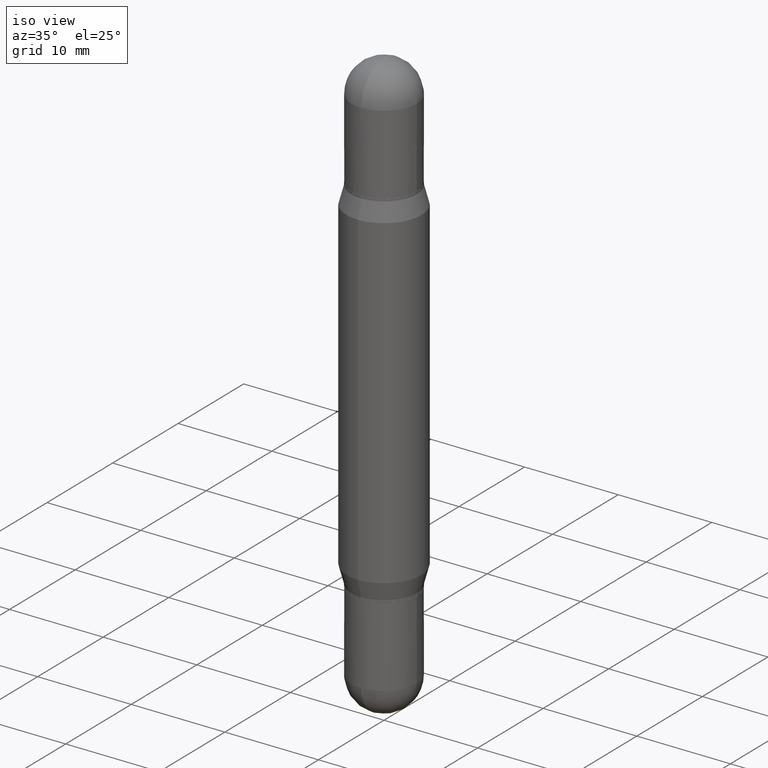
[diagram: clean part render]
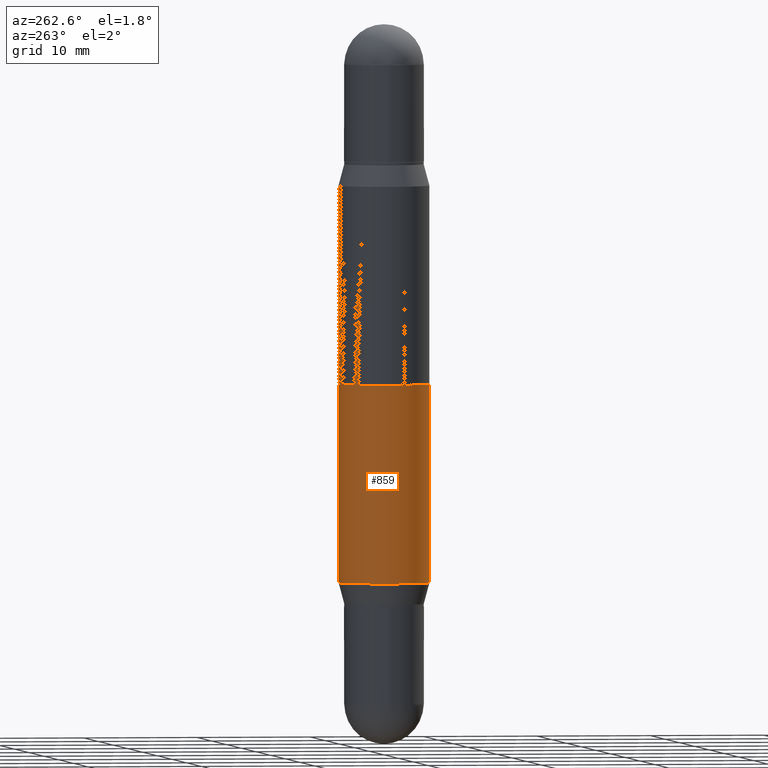
[diagram: tour spotlight — one face highlighted and labeled with its STEP entity id]
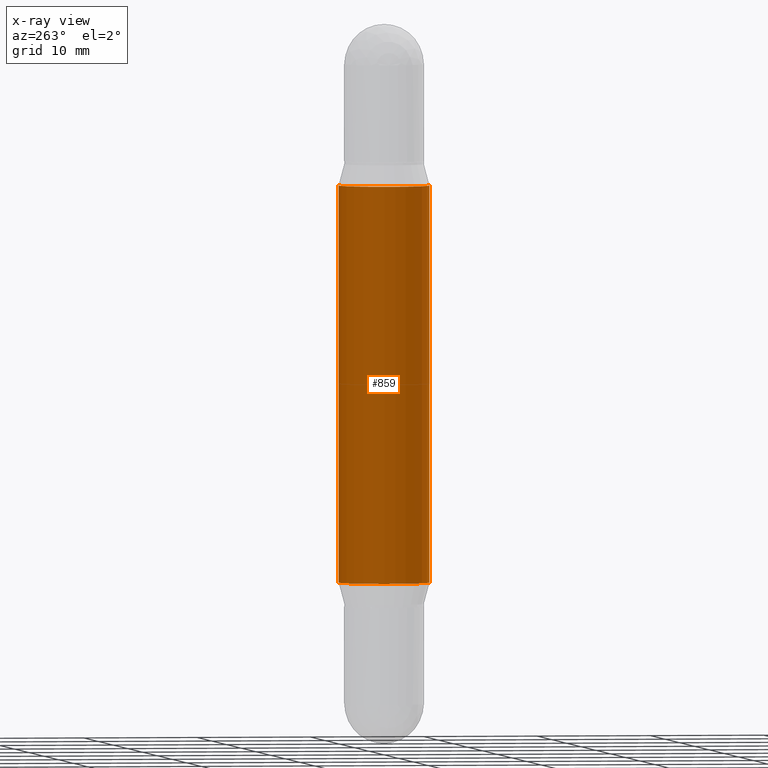
[diagram: x-ray of the same camera — body ghosted, this tour face saturated]
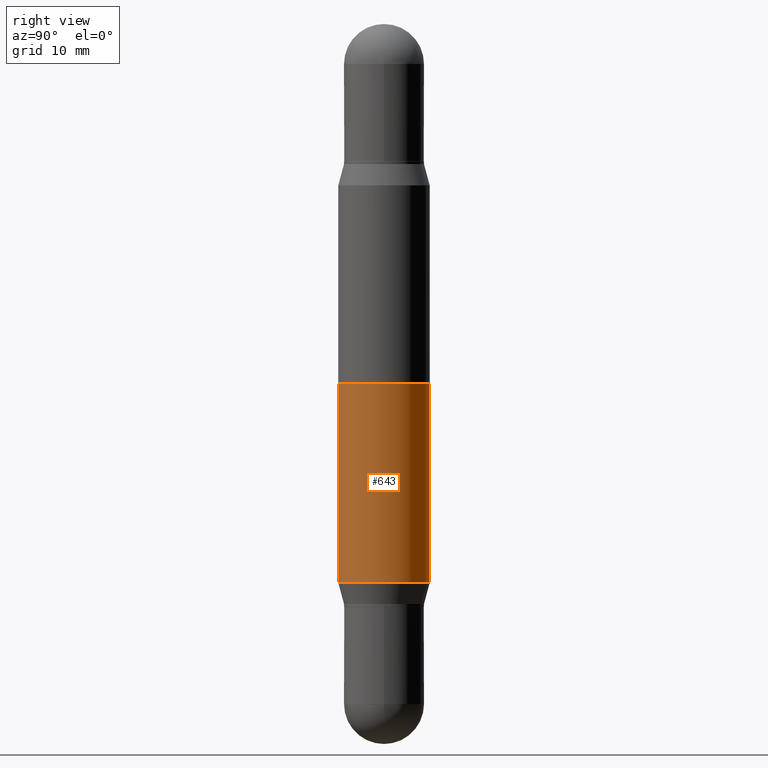
[diagram: tour spotlight — one face highlighted and labeled with its STEP entity id]
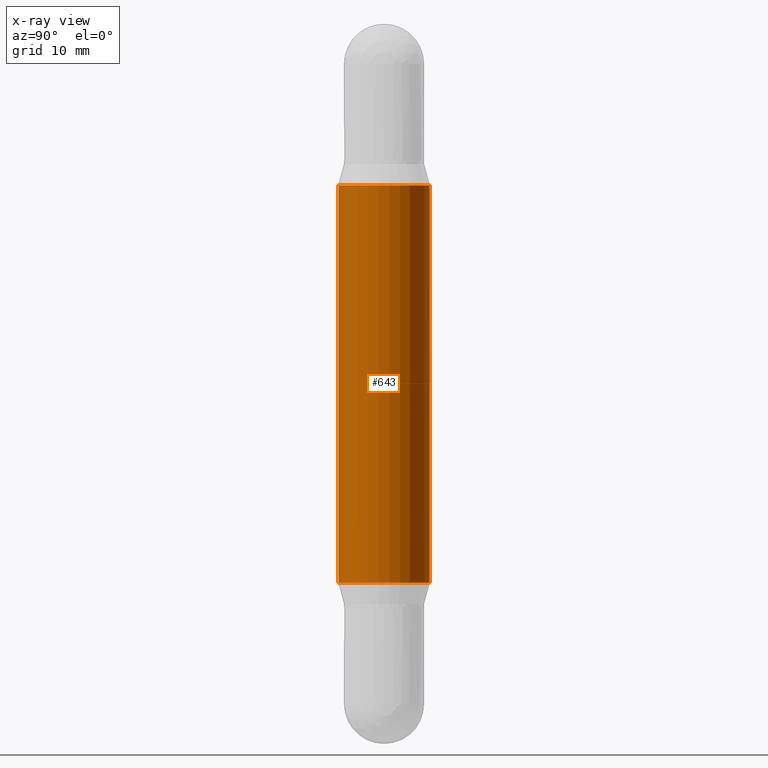
[diagram: x-ray of the same camera — body ghosted, this tour face saturated]
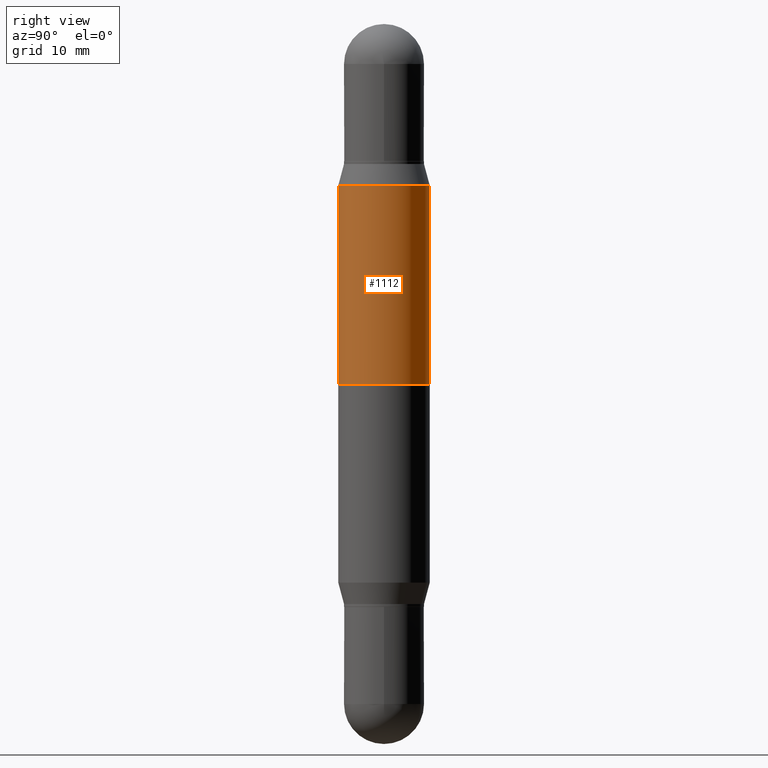
[diagram: tour spotlight — one face highlighted and labeled with its STEP entity id]
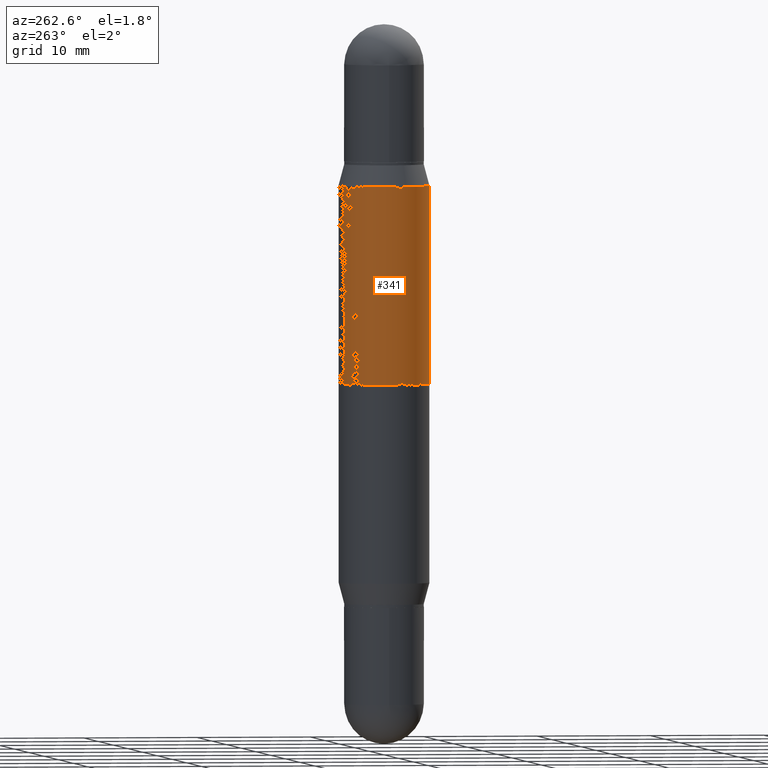
[diagram: tour spotlight — one face highlighted and labeled with its STEP entity id]
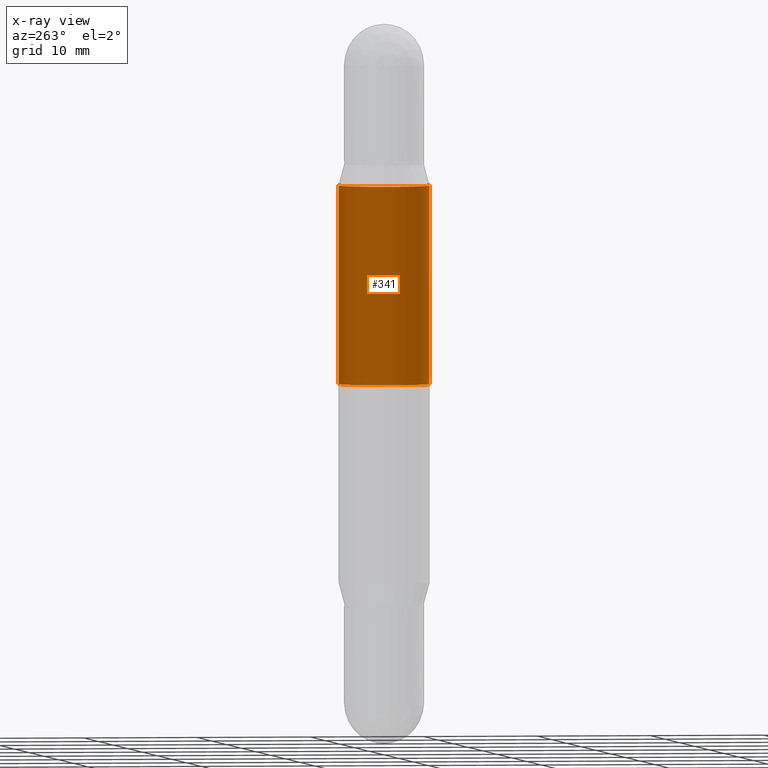
[diagram: x-ray of the same camera — body ghosted, this tour face saturated]
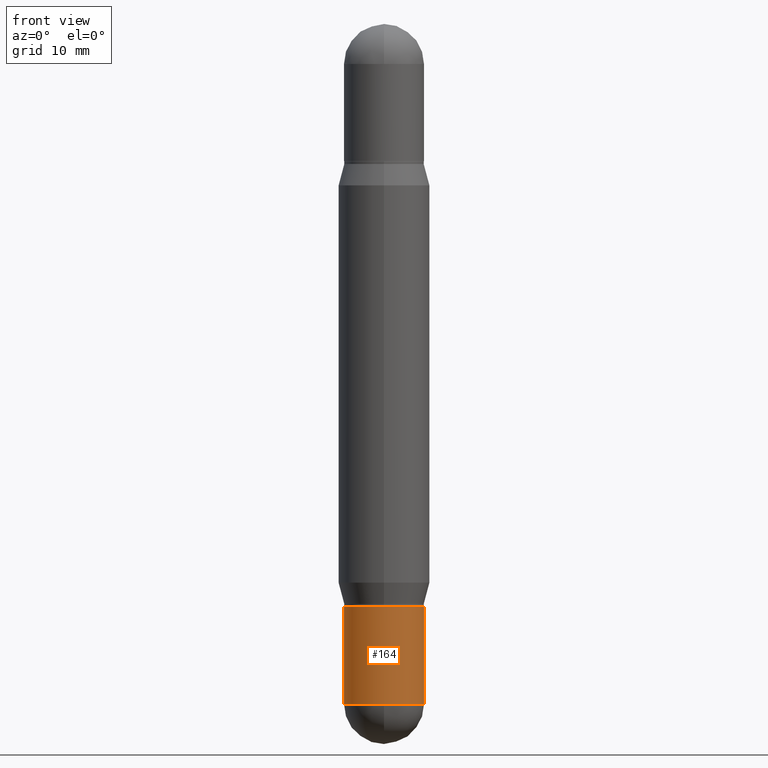
[diagram: tour spotlight — one face highlighted and labeled with its STEP entity id]
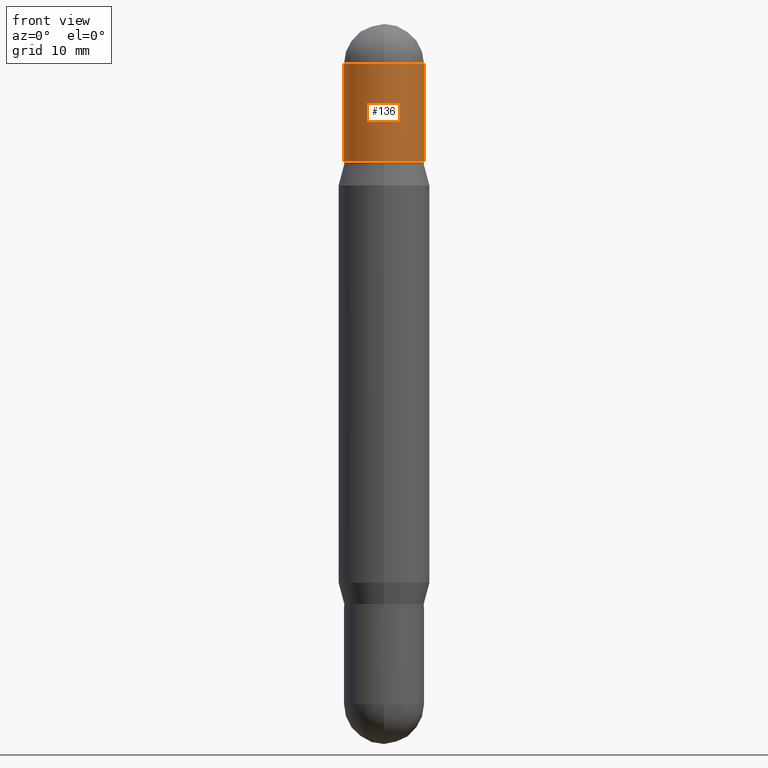
[diagram: tour spotlight — one face highlighted and labeled with its STEP entity id]
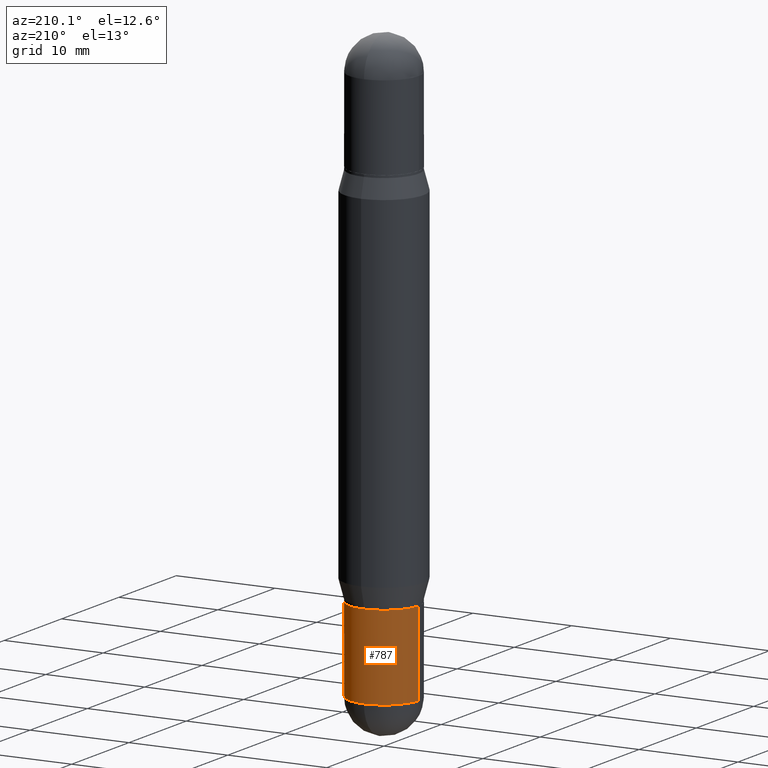
[diagram: tour spotlight — one face highlighted and labeled with its STEP entity id]
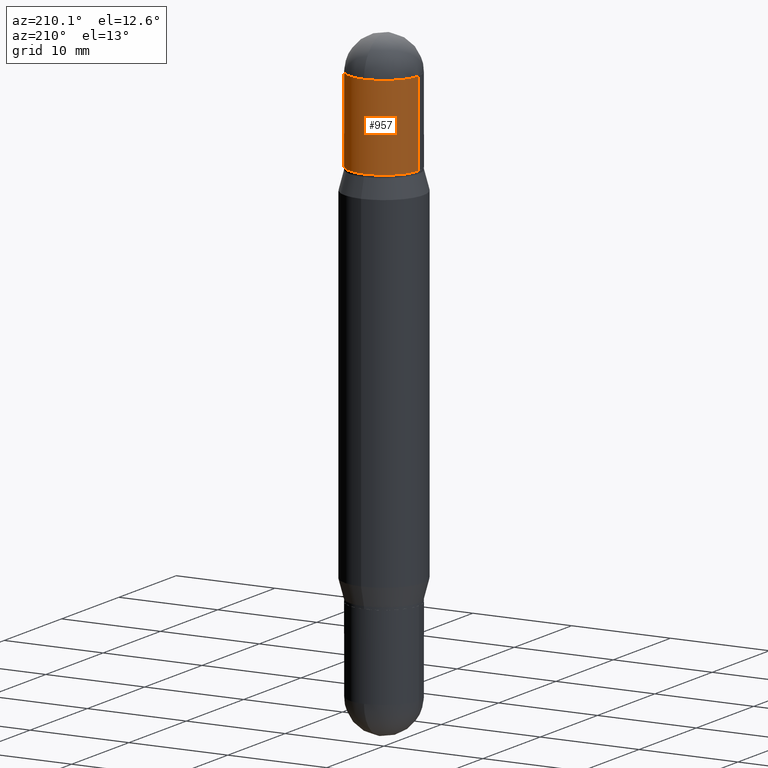
[diagram: tour spotlight — one face highlighted and labeled with its STEP entity id]
A machine part: a face-by-face anatomy tour. The part has 41 B-rep faces; the first image is the clean iso view, then the 8 largest visible faces are spotlighted one at a time (largest first), each with its STEP entity span.

Face 1 — auxiliary view, entity #859. An x-ray twin of the same camera follows (body ghosted, this face saturated) — the face is partly hidden behind the body. In plain terms, the highlighted cylindrical surface (partial cylindrical patch) has radius 4.0005 mm, axis along (-0, -0, -1).
Definition (entity closure, byte-faithful):
#32 = CARTESIAN_POINT ( 'NONE',  ( 0.000000000000000000, -8.645204463588881794E-15, -2.480300000000000171 ) ) ;
#44 = LINE ( 'NONE', #389, #132 ) ;
#65 = CARTESIAN_POINT ( 'NONE',  ( -1.099816621735539754E-15, -0.1575000000000067180, -1.924378599090893038 ) ) ;
#132 = VECTOR ( 'NONE', #574, 39.37007874015748143 ) ;
#133 = CARTESIAN_POINT ( 'NONE',  ( 4.708763311328271682E-29, -6.714985969186524876E-15, -1.924378599090893704 ) ) ;
#227 = CIRCLE ( 'NONE', #567, 0.1575000000000000011 ) ;
#231 = FACE_OUTER_BOUND ( 'NONE', #512, .T. ) ;
#260 = AXIS2_PLACEMENT_3D ( 'NONE', #133, #1082, #558 ) ;
#278 = VERTEX_POINT ( 'NONE', #578 ) ;
#316 = VERTEX_POINT ( 'NONE', #903 ) ;
#319 = ORIENTED_EDGE ( 'NONE', *, *, #411, .T. ) ;
#355 = VERTEX_POINT ( 'NONE', #65 ) ;
#375 = DIRECTION ( 'NONE',  ( -6.982962677686264344E-15, -1.000000000000000000, 3.469013325287953293E-15 ) ) ;
#377 = EDGE_CURVE ( 'NONE', #316, #355, #747, .T. ) ;
#382 = EDGE_CURVE ( 'NONE', #386, #355, #1070, .T. ) ;
#386 = VERTEX_POINT ( 'NONE', #750 ) ;
#389 = CARTESIAN_POINT ( 'NONE',  ( 1.080528434649016174E-15, 0.1574999999999913414, -2.480300000000001059 ) ) ;
#407 = ORIENTED_EDGE ( 'NONE', *, *, #382, .F. ) ;
#411 = EDGE_CURVE ( 'NONE', #278, #316, #44, .T. ) ;
#474 = ORIENTED_EDGE ( 'NONE', *, *, #645, .F. ) ;
#512 = EDGE_LOOP ( 'NONE', ( #474, #319, #791, #407 ) ) ;
#533 = CARTESIAN_POINT ( 'NONE',  ( 4.708763311328271682E-29, -1.945162851841235390E-15, -0.5559214009091065778 ) ) ;
#558 = DIRECTION ( 'NONE',  ( -6.982962677686264344E-15, -1.000000000000000000, 3.469013325287953293E-15 ) ) ;
#567 = AXIS2_PLACEMENT_3D ( 'NONE', #533, #954, #794 ) ;
#573 = DIRECTION ( 'NONE',  ( -2.446900684487327434E-29, -3.481664998204017086E-15, -1.000000000000000000 ) ) ;
#574 = DIRECTION ( 'NONE',  ( -2.446900684487327434E-29, -3.481664998204017480E-15, -1.000000000000000000 ) ) ;
#578 = CARTESIAN_POINT ( 'NONE',  ( 1.080528434649063111E-15, 0.1574999999999980582, -0.5559214009091071329 ) ) ;
#645 = EDGE_CURVE ( 'NONE', #278, #386, #227, .T. ) ;
#747 = CIRCLE ( 'NONE', #260, 0.1575000000000000011 ) ;
#750 = CARTESIAN_POINT ( 'NONE',  ( -1.099816621735539754E-15, -0.1575000000000019440, -0.5559214009091061337 ) ) ;
#791 = ORIENTED_EDGE ( 'NONE', *, *, #377, .T. ) ;
#794 = DIRECTION ( 'NONE',  ( -6.982962677686264344E-15, -1.000000000000000000, 3.469013325287953293E-15 ) ) ;
#809 = CYLINDRICAL_SURFACE ( 'NONE', #962, 0.1575000000000000011 ) ;
#824 = DIRECTION ( 'NONE',  ( -2.446900684487327434E-29, -3.481664998204017480E-15, -1.000000000000000000 ) ) ;
#854 = VECTOR ( 'NONE', #824, 39.37007874015748143 ) ;
#859 = ADVANCED_FACE ( 'NONE', ( #231 ), #809, .T. ) ;
#903 = CARTESIAN_POINT ( 'NONE',  ( 1.080528434649046348E-15, 0.1574999999999932565, -1.924378599090894149 ) ) ;
#954 = DIRECTION ( 'NONE',  ( 2.446900684487327434E-29, 3.481664998204017086E-15, 1.000000000000000000 ) ) ;
#962 = AXIS2_PLACEMENT_3D ( 'NONE', #32, #573, #375 ) ;
#1002 = CARTESIAN_POINT ( 'NONE',  ( -1.099816621735586691E-15, -0.1575000000000086331, -2.480299999999999727 ) ) ;
#1070 = LINE ( 'NONE', #1002, #854 ) ;
#1082 = DIRECTION ( 'NONE',  ( -2.446900684487327434E-29, 3.489430807616956751E-15, 1.000000000000000000 ) ) ;

Face 2 — right view, entity #643. An x-ray twin of the same camera follows (body ghosted, this face saturated) — the face is partly hidden behind the body. In plain terms, the highlighted cylindrical surface (partial cylindrical patch) has radius 4.0005 mm, axis along (-0, -0, -1).
Definition (entity closure, byte-faithful):
#33 = DIRECTION ( 'NONE',  ( -6.982962677686264344E-15, -1.000000000000000000, 3.469013325287953293E-15 ) ) ;
#44 = LINE ( 'NONE', #389, #132 ) ;
#65 = CARTESIAN_POINT ( 'NONE',  ( -1.099816621735539754E-15, -0.1575000000000067180, -1.924378599090893038 ) ) ;
#124 = EDGE_CURVE ( 'NONE', #386, #278, #885, .T. ) ;
#131 = CIRCLE ( 'NONE', #496, 0.1575000000000000011 ) ;
#132 = VECTOR ( 'NONE', #574, 39.37007874015748143 ) ;
#145 = EDGE_CURVE ( 'NONE', #355, #316, #131, .T. ) ;
#165 = DIRECTION ( 'NONE',  ( -6.982962677686264344E-15, -1.000000000000000000, 3.469013325287953293E-15 ) ) ;
#263 = CARTESIAN_POINT ( 'NONE',  ( 4.708763311328271682E-29, -1.945162851841235390E-15, -0.5559214009091065778 ) ) ;
#278 = VERTEX_POINT ( 'NONE', #578 ) ;
#316 = VERTEX_POINT ( 'NONE', #903 ) ;
#355 = VERTEX_POINT ( 'NONE', #65 ) ;
#382 = EDGE_CURVE ( 'NONE', #386, #355, #1070, .T. ) ;
#386 = VERTEX_POINT ( 'NONE', #750 ) ;
#389 = CARTESIAN_POINT ( 'NONE',  ( 1.080528434649016174E-15, 0.1574999999999913414, -2.480300000000001059 ) ) ;
#411 = EDGE_CURVE ( 'NONE', #278, #316, #44, .T. ) ;
#445 = DIRECTION ( 'NONE',  ( -2.446900684487327434E-29, -3.481664998204017086E-15, -1.000000000000000000 ) ) ;
#481 = ORIENTED_EDGE ( 'NONE', *, *, #382, .T. ) ;
#496 = AXIS2_PLACEMENT_3D ( 'NONE', #614, #978, #33 ) ;
#508 = EDGE_LOOP ( 'NONE', ( #1113, #932, #481, #973 ) ) ;
#526 = FACE_OUTER_BOUND ( 'NONE', #508, .T. ) ;
#574 = DIRECTION ( 'NONE',  ( -2.446900684487327434E-29, -3.481664998204017480E-15, -1.000000000000000000 ) ) ;
#578 = CARTESIAN_POINT ( 'NONE',  ( 1.080528434649063111E-15, 0.1574999999999980582, -0.5559214009091071329 ) ) ;
#590 = DIRECTION ( 'NONE',  ( 2.446900684487327434E-29, 3.481664998204017086E-15, 1.000000000000000000 ) ) ;
#602 = AXIS2_PLACEMENT_3D ( 'NONE', #612, #445, #1039 ) ;
#612 = CARTESIAN_POINT ( 'NONE',  ( 0.000000000000000000, -8.645204463588881794E-15, -2.480300000000000171 ) ) ;
#614 = CARTESIAN_POINT ( 'NONE',  ( 4.708763311328271682E-29, -6.714985969186524876E-15, -1.924378599090893704 ) ) ;
#643 = ADVANCED_FACE ( 'NONE', ( #526 ), #706, .T. ) ;
#694 = AXIS2_PLACEMENT_3D ( 'NONE', #263, #590, #165 ) ;
#706 = CYLINDRICAL_SURFACE ( 'NONE', #602, 0.1575000000000000011 ) ;
#750 = CARTESIAN_POINT ( 'NONE',  ( -1.099816621735539754E-15, -0.1575000000000019440, -0.5559214009091061337 ) ) ;
#824 = DIRECTION ( 'NONE',  ( -2.446900684487327434E-29, -3.481664998204017480E-15, -1.000000000000000000 ) ) ;
#854 = VECTOR ( 'NONE', #824, 39.37007874015748143 ) ;
#885 = CIRCLE ( 'NONE', #694, 0.1575000000000000011 ) ;
#903 = CARTESIAN_POINT ( 'NONE',  ( 1.080528434649046348E-15, 0.1574999999999932565, -1.924378599090894149 ) ) ;
#932 = ORIENTED_EDGE ( 'NONE', *, *, #124, .F. ) ;
#973 = ORIENTED_EDGE ( 'NONE', *, *, #145, .T. ) ;
#978 = DIRECTION ( 'NONE',  ( -2.446900684487327434E-29, 3.489430807616956751E-15, 1.000000000000000000 ) ) ;
#1002 = CARTESIAN_POINT ( 'NONE',  ( -1.099816621735586691E-15, -0.1575000000000086331, -2.480299999999999727 ) ) ;
#1039 = DIRECTION ( 'NONE',  ( -6.982962677686264344E-15, -1.000000000000000000, 3.469013325287953293E-15 ) ) ;
#1070 = LINE ( 'NONE', #1002, #854 ) ;
#1113 = ORIENTED_EDGE ( 'NONE', *, *, #411, .F. ) ;

Face 3 — right view, entity #1112. In plain terms, the highlighted cylindrical surface (partial cylindrical patch) has radius 4.0005 mm, axis along (-0, -0, -1).
Definition (entity closure, byte-faithful):
#28 = CARTESIAN_POINT ( 'NONE',  ( 3.034523883866959709E-29, -4.327417616066169233E-15, -1.240150000000000086 ) ) ;
#62 = AXIS2_PLACEMENT_3D ( 'NONE', #971, #1056, #881 ) ;
#79 = VECTOR ( 'NONE', #534, 39.37007874015748143 ) ;
#92 = EDGE_CURVE ( 'NONE', #579, #813, #325, .T. ) ;
#103 = CARTESIAN_POINT ( 'NONE',  ( 0.000000000000000000, -8.645204463588881794E-15, -2.480300000000000171 ) ) ;
#127 = EDGE_CURVE ( 'NONE', #704, #813, #1019, .T. ) ;
#175 = CIRCLE ( 'NONE', #62, 0.1575000000000000011 ) ;
#202 = EDGE_CURVE ( 'NONE', #554, #704, #1063, .T. ) ;
#208 = AXIS2_PLACEMENT_3D ( 'NONE', #28, #715, #279 ) ;
#223 = CARTESIAN_POINT ( 'NONE',  ( -1.099816621735556123E-15, -0.1575000000000043310, -1.240149999999999642 ) ) ;
#249 = ORIENTED_EDGE ( 'NONE', *, *, #92, .T. ) ;
#259 = VECTOR ( 'NONE', #417, 39.37007874015748143 ) ;
#275 = CYLINDRICAL_SURFACE ( 'NONE', #385, 0.1575000000000000011 ) ;
#279 = DIRECTION ( 'NONE',  ( 0.000000000000000000, 1.000000000000000000, -3.469013325287953293E-15 ) ) ;
#284 = EDGE_LOOP ( 'NONE', ( #650, #545, #249, #500 ) ) ;
#325 = LINE ( 'NONE', #943, #259 ) ;
#346 = DIRECTION ( 'NONE',  ( -2.446900684487327434E-29, -3.481664998204017086E-15, -1.000000000000000000 ) ) ;
#363 = FACE_OUTER_BOUND ( 'NONE', #284, .T. ) ;
#385 = AXIS2_PLACEMENT_3D ( 'NONE', #103, #346, #532 ) ;
#417 = DIRECTION ( 'NONE',  ( -2.446900684487327434E-29, -3.481664998204017480E-15, -1.000000000000000000 ) ) ;
#500 = ORIENTED_EDGE ( 'NONE', *, *, #127, .F. ) ;
#532 = DIRECTION ( 'NONE',  ( -6.982962677686264344E-15, -1.000000000000000000, 3.469013325287953293E-15 ) ) ;
#534 = DIRECTION ( 'NONE',  ( -2.446900684487327434E-29, -3.481664998204017480E-15, -1.000000000000000000 ) ) ;
#545 = ORIENTED_EDGE ( 'NONE', *, *, #665, .F. ) ;
#554 = VERTEX_POINT ( 'NONE', #1028 ) ;
#579 = VERTEX_POINT ( 'NONE', #689 ) ;
#650 = ORIENTED_EDGE ( 'NONE', *, *, #202, .F. ) ;
#665 = EDGE_CURVE ( 'NONE', #579, #554, #175, .T. ) ;
#689 = CARTESIAN_POINT ( 'NONE',  ( -1.099816621735539754E-15, -0.1575000000000019440, -0.5559214009091061337 ) ) ;
#704 = VERTEX_POINT ( 'NONE', #977 ) ;
#715 = DIRECTION ( 'NONE',  ( -0.000000000000000000, -3.485547902910486918E-15, -1.000000000000000000 ) ) ;
#812 = CARTESIAN_POINT ( 'NONE',  ( 1.080528434649016174E-15, 0.1574999999999913414, -2.480300000000001059 ) ) ;
#813 = VERTEX_POINT ( 'NONE', #223 ) ;
#881 = DIRECTION ( 'NONE',  ( -6.982962677686264344E-15, -1.000000000000000000, 3.469013325287953293E-15 ) ) ;
#943 = CARTESIAN_POINT ( 'NONE',  ( -1.099816621735586691E-15, -0.1575000000000086331, -2.480299999999999727 ) ) ;
#971 = CARTESIAN_POINT ( 'NONE',  ( 4.708763311328271682E-29, -1.945162851841235390E-15, -0.5559214009091065778 ) ) ;
#977 = CARTESIAN_POINT ( 'NONE',  ( 1.080528434649054828E-15, 0.1574999999999956435, -1.240150000000000752 ) ) ;
#1019 = CIRCLE ( 'NONE', #208, 0.1575000000000000011 ) ;
#1028 = CARTESIAN_POINT ( 'NONE',  ( 1.080528434649063111E-15, 0.1574999999999980582, -0.5559214009091071329 ) ) ;
#1056 = DIRECTION ( 'NONE',  ( 2.446900684487327434E-29, 3.481664998204017086E-15, 1.000000000000000000 ) ) ;
#1063 = LINE ( 'NONE', #812, #79 ) ;
#1112 = ADVANCED_FACE ( 'NONE', ( #363 ), #275, .T. ) ;

Face 4 — auxiliary view, entity #341. An x-ray twin of the same camera follows (body ghosted, this face saturated) — the face is partly hidden behind the body. In plain terms, the highlighted cylindrical surface (partial cylindrical patch) has radius 4.0005 mm, axis along (-0, -0, -1).
Definition (entity closure, byte-faithful):
#14 = CARTESIAN_POINT ( 'NONE',  ( 3.034523883866959709E-29, -4.327417616066169233E-15, -1.240150000000000086 ) ) ;
#79 = VECTOR ( 'NONE', #534, 39.37007874015748143 ) ;
#92 = EDGE_CURVE ( 'NONE', #579, #813, #325, .T. ) ;
#97 = CIRCLE ( 'NONE', #224, 0.1575000000000000011 ) ;
#190 = EDGE_CURVE ( 'NONE', #813, #704, #97, .T. ) ;
#200 = ORIENTED_EDGE ( 'NONE', *, *, #924, .F. ) ;
#202 = EDGE_CURVE ( 'NONE', #554, #704, #1063, .T. ) ;
#223 = CARTESIAN_POINT ( 'NONE',  ( -1.099816621735556123E-15, -0.1575000000000043310, -1.240149999999999642 ) ) ;
#224 = AXIS2_PLACEMENT_3D ( 'NONE', #14, #797, #628 ) ;
#234 = CARTESIAN_POINT ( 'NONE',  ( 0.000000000000000000, -8.645204463588881794E-15, -2.480300000000000171 ) ) ;
#255 = DIRECTION ( 'NONE',  ( 2.446900684487327434E-29, 3.481664998204017086E-15, 1.000000000000000000 ) ) ;
#259 = VECTOR ( 'NONE', #417, 39.37007874015748143 ) ;
#264 = EDGE_LOOP ( 'NONE', ( #200, #722, #1088, #443 ) ) ;
#300 = CYLINDRICAL_SURFACE ( 'NONE', #615, 0.1575000000000000011 ) ;
#325 = LINE ( 'NONE', #943, #259 ) ;
#341 = ADVANCED_FACE ( 'NONE', ( #1078 ), #300, .T. ) ;
#417 = DIRECTION ( 'NONE',  ( -2.446900684487327434E-29, -3.481664998204017480E-15, -1.000000000000000000 ) ) ;
#443 = ORIENTED_EDGE ( 'NONE', *, *, #92, .F. ) ;
#534 = DIRECTION ( 'NONE',  ( -2.446900684487327434E-29, -3.481664998204017480E-15, -1.000000000000000000 ) ) ;
#554 = VERTEX_POINT ( 'NONE', #1028 ) ;
#579 = VERTEX_POINT ( 'NONE', #689 ) ;
#588 = CARTESIAN_POINT ( 'NONE',  ( 4.708763311328271682E-29, -1.945162851841235390E-15, -0.5559214009091065778 ) ) ;
#615 = AXIS2_PLACEMENT_3D ( 'NONE', #234, #664, #648 ) ;
#628 = DIRECTION ( 'NONE',  ( 0.000000000000000000, 1.000000000000000000, -3.469013325287953293E-15 ) ) ;
#640 = AXIS2_PLACEMENT_3D ( 'NONE', #588, #255, #683 ) ;
#648 = DIRECTION ( 'NONE',  ( -6.982962677686264344E-15, -1.000000000000000000, 3.469013325287953293E-15 ) ) ;
#664 = DIRECTION ( 'NONE',  ( -2.446900684487327434E-29, -3.481664998204017086E-15, -1.000000000000000000 ) ) ;
#683 = DIRECTION ( 'NONE',  ( -6.982962677686264344E-15, -1.000000000000000000, 3.469013325287953293E-15 ) ) ;
#689 = CARTESIAN_POINT ( 'NONE',  ( -1.099816621735539754E-15, -0.1575000000000019440, -0.5559214009091061337 ) ) ;
#704 = VERTEX_POINT ( 'NONE', #977 ) ;
#722 = ORIENTED_EDGE ( 'NONE', *, *, #202, .T. ) ;
#797 = DIRECTION ( 'NONE',  ( -0.000000000000000000, -3.485547902910486918E-15, -1.000000000000000000 ) ) ;
#812 = CARTESIAN_POINT ( 'NONE',  ( 1.080528434649016174E-15, 0.1574999999999913414, -2.480300000000001059 ) ) ;
#813 = VERTEX_POINT ( 'NONE', #223 ) ;
#924 = EDGE_CURVE ( 'NONE', #554, #579, #1075, .T. ) ;
#943 = CARTESIAN_POINT ( 'NONE',  ( -1.099816621735586691E-15, -0.1575000000000086331, -2.480299999999999727 ) ) ;
#977 = CARTESIAN_POINT ( 'NONE',  ( 1.080528434649054828E-15, 0.1574999999999956435, -1.240150000000000752 ) ) ;
#1028 = CARTESIAN_POINT ( 'NONE',  ( 1.080528434649063111E-15, 0.1574999999999980582, -0.5559214009091071329 ) ) ;
#1063 = LINE ( 'NONE', #812, #79 ) ;
#1075 = CIRCLE ( 'NONE', #640, 0.1575000000000000011 ) ;
#1078 = FACE_OUTER_BOUND ( 'NONE', #264, .T. ) ;
#1088 = ORIENTED_EDGE ( 'NONE', *, *, #190, .F. ) ;

Face 5 — front view, entity #164. In plain terms, the highlighted cylindrical surface (partial cylindrical patch) has radius 3.5001 mm, axis along (-0, 0, 1).
Definition (entity closure, byte-faithful):
#39 = AXIS2_PLACEMENT_3D ( 'NONE', #464, #367, #442 ) ;
#53 = ORIENTED_EDGE ( 'NONE', *, *, #419, .T. ) ;
#69 = DIRECTION ( 'NONE',  ( -2.445468806185136877E-29, 3.491481338843145188E-15, 1.000000000000000000 ) ) ;
#105 = FACE_OUTER_BOUND ( 'NONE', #1029, .T. ) ;
#108 = CARTESIAN_POINT ( 'NONE',  ( 4.910256815939136430E-29, -7.010545380263152499E-15, -2.007900000000000240 ) ) ;
#164 = ADVANCED_FACE ( 'NONE', ( #105 ), #610, .T. ) ;
#196 = AXIS2_PLACEMENT_3D ( 'NONE', #874, #863, #958 ) ;
#210 = VECTOR ( 'NONE', #894, 39.37007874015748143 ) ;
#217 = DIRECTION ( 'NONE',  ( 1.000000000000000000, -6.982962677686261977E-15, 0.000000000000000000 ) ) ;
#241 = CARTESIAN_POINT ( 'NONE',  ( -0.1378000000000000891, 9.791278898774186891E-16, -6.778292554371264238E-30 ) ) ;
#308 = ORIENTED_EDGE ( 'NONE', *, *, #1049, .T. ) ;
#330 = VERTEX_POINT ( 'NONE', #918 ) ;
#347 = AXIS2_PLACEMENT_3D ( 'NONE', #108, #448, #784 ) ;
#352 = CARTESIAN_POINT ( 'NONE',  ( -9.791278898773611023E-16, -0.1378000000000082215, -2.342499999999999361 ) ) ;
#357 = LINE ( 'NONE', #627, #210 ) ;
#367 = DIRECTION ( 'NONE',  ( -2.445468806185136597E-29, 3.491481338843145583E-15, 1.000000000000000000 ) ) ;
#372 = VERTEX_POINT ( 'NONE', #405 ) ;
#380 = CARTESIAN_POINT ( 'NONE',  ( -0.1378000000000000891, -6.615542318374191387E-15, -2.007900000000000240 ) ) ;
#390 = ORIENTED_EDGE ( 'NONE', *, *, #1074, .F. ) ;
#405 = CARTESIAN_POINT ( 'NONE',  ( 0.1378000000000000891, -7.972797637248321554E-15, -2.007900000000000240 ) ) ;
#419 = EDGE_CURVE ( 'NONE', #1091, #330, #674, .T. ) ;
#442 = DIRECTION ( 'NONE',  ( 1.000000000000000000, -6.982962677686267499E-15, 4.876176775795935793E-29 ) ) ;
#448 = DIRECTION ( 'NONE',  ( -2.445468806185136597E-29, 3.491481338843145583E-15, 1.000000000000000000 ) ) ;
#464 = CARTESIAN_POINT ( 'NONE',  ( 0.000000000000000000, 0.000000000000000000, 0.000000000000000000 ) ) ;
#501 = CIRCLE ( 'NONE', #347, 0.1378000000000000891 ) ;
#610 = CYLINDRICAL_SURFACE ( 'NONE', #39, 0.1378000000000000891 ) ;
#627 = CARTESIAN_POINT ( 'NONE',  ( 0.1378000000000000891, -9.622522569851682658E-16, 6.719371597046804141E-30 ) ) ;
#642 = DIRECTION ( 'NONE',  ( -2.445468806185136597E-29, 3.491481338843145583E-15, 1.000000000000000000 ) ) ;
#674 = CIRCLE ( 'NONE', #1035, 0.1378000000000000891 ) ;
#686 = ORIENTED_EDGE ( 'NONE', *, *, #687, .T. ) ;
#687 = EDGE_CURVE ( 'NONE', #330, #372, #357, .T. ) ;
#688 = CARTESIAN_POINT ( 'NONE',  ( -0.1378000000000000891, -6.615542318374192176E-15, -2.342499999999999805 ) ) ;
#731 = CIRCLE ( 'NONE', #196, 0.1378000000000000891 ) ;
#784 = DIRECTION ( 'NONE',  ( 1.000000000000000000, -6.982962677686269077E-15, 0.000000000000000000 ) ) ;
#815 = CARTESIAN_POINT ( 'NONE',  ( 5.728510678488681895E-29, -8.178795036240068442E-15, -2.342499999999999805 ) ) ;
#836 = ORIENTED_EDGE ( 'NONE', *, *, #1014, .F. ) ;
#863 = DIRECTION ( 'NONE',  ( -2.445468806185136597E-29, 3.491481338843145583E-15, 1.000000000000000000 ) ) ;
#865 = VERTEX_POINT ( 'NONE', #380 ) ;
#874 = CARTESIAN_POINT ( 'NONE',  ( 5.728510678488681895E-29, -8.178795036240068442E-15, -2.342499999999999805 ) ) ;
#890 = VECTOR ( 'NONE', #69, 39.37007874015748143 ) ;
#894 = DIRECTION ( 'NONE',  ( -2.445468806185136877E-29, 3.491481338843145188E-15, 1.000000000000000000 ) ) ;
#918 = CARTESIAN_POINT ( 'NONE',  ( 0.1378000000000000891, -8.556922465236779525E-15, -2.342499999999999805 ) ) ;
#958 = DIRECTION ( 'NONE',  ( 1.000000000000000000, -6.982962677686261977E-15, 0.000000000000000000 ) ) ;
#980 = VERTEX_POINT ( 'NONE', #688 ) ;
#1014 = EDGE_CURVE ( 'NONE', #980, #865, #1015, .T. ) ;
#1015 = LINE ( 'NONE', #241, #890 ) ;
#1029 = EDGE_LOOP ( 'NONE', ( #836, #308, #53, #686, #390 ) ) ;
#1035 = AXIS2_PLACEMENT_3D ( 'NONE', #815, #642, #217 ) ;
#1049 = EDGE_CURVE ( 'NONE', #980, #1091, #731, .T. ) ;
#1074 = EDGE_CURVE ( 'NONE', #865, #372, #501, .T. ) ;
#1091 = VERTEX_POINT ( 'NONE', #352 ) ;

Face 6 — front view, entity #136. In plain terms, the highlighted cylindrical surface (partial cylindrical patch) has radius 3.5001 mm, axis along (-0, -0, -1).
Definition (entity closure, byte-faithful):
#27 = CARTESIAN_POINT ( 'NONE',  ( -0.1378000000000000891, -1.309704509257920754E-16, -0.4724000000000001531 ) ) ;
#30 = EDGE_CURVE ( 'NONE', #137, #635, #858, .T. ) ;
#74 = EDGE_LOOP ( 'NONE', ( #338, #561, #243, #144, #850 ) ) ;
#81 = VERTEX_POINT ( 'NONE', #867 ) ;
#111 = VERTEX_POINT ( 'NONE', #1040 ) ;
#114 = AXIS2_PLACEMENT_3D ( 'NONE', #544, #703, #886 ) ;
#120 = EDGE_CURVE ( 'NONE', #111, #81, #506, .T. ) ;
#122 = DIRECTION ( 'NONE',  ( -2.445468806185136597E-29, -3.479614466977828254E-15, -1.000000000000000000 ) ) ;
#136 = ADVANCED_FACE ( 'NONE', ( #459 ), #287, .T. ) ;
#137 = VERTEX_POINT ( 'NONE', #719 ) ;
#144 = ORIENTED_EDGE ( 'NONE', *, *, #120, .F. ) ;
#177 = CIRCLE ( 'NONE', #229, 0.1378000000000000891 ) ;
#186 = EDGE_CURVE ( 'NONE', #137, #915, #984, .T. ) ;
#197 = CARTESIAN_POINT ( 'NONE',  ( 5.728510678488681895E-29, -4.942075746933196151E-16, -0.1378000000000003666 ) ) ;
#229 = AXIS2_PLACEMENT_3D ( 'NONE', #494, #422, #591 ) ;
#243 = ORIENTED_EDGE ( 'NONE', *, *, #257, .T. ) ;
#257 = EDGE_CURVE ( 'NONE', #635, #81, #838, .T. ) ;
#287 = CYLINDRICAL_SURFACE ( 'NONE', #582, 0.1378000000000000891 ) ;
#338 = ORIENTED_EDGE ( 'NONE', *, *, #186, .F. ) ;
#342 = CARTESIAN_POINT ( 'NONE',  ( -0.1378000000000000891, -7.699827839495964346E-15, -2.480300000000000171 ) ) ;
#358 = DIRECTION ( 'NONE',  ( 1.000000000000000000, -6.982962677686269077E-15, 0.000000000000000000 ) ) ;
#422 = DIRECTION ( 'NONE',  ( 2.445468806185136597E-29, 3.479614466977828254E-15, 1.000000000000000000 ) ) ;
#426 = CARTESIAN_POINT ( 'NONE',  ( -9.453766240928600585E-16, -0.1378000000000005332, -0.1377999999999998948 ) ) ;
#459 = FACE_OUTER_BOUND ( 'NONE', #74, .T. ) ;
#494 = CARTESIAN_POINT ( 'NONE',  ( 5.728510678488681895E-29, -4.942075746933196151E-16, -0.1378000000000003666 ) ) ;
#506 = LINE ( 'NONE', #1026, #837 ) ;
#522 = DIRECTION ( 'NONE',  ( -2.445468806185136877E-29, -3.479614466977828648E-15, -1.000000000000000000 ) ) ;
#544 = CARTESIAN_POINT ( 'NONE',  ( 4.910256815939136430E-29, -1.658486575344099629E-15, -0.4724000000000001531 ) ) ;
#553 = CARTESIAN_POINT ( 'NONE',  ( 0.000000000000000000, -8.645204463588881794E-15, -2.480300000000000171 ) ) ;
#561 = ORIENTED_EDGE ( 'NONE', *, *, #30, .T. ) ;
#582 = AXIS2_PLACEMENT_3D ( 'NONE', #553, #122, #358 ) ;
#591 = DIRECTION ( 'NONE',  ( 1.000000000000000000, -6.982962677686267499E-15, 0.000000000000000000 ) ) ;
#608 = DIRECTION ( 'NONE',  ( -2.445468806185136877E-29, -3.479614466977828648E-15, -1.000000000000000000 ) ) ;
#635 = VERTEX_POINT ( 'NONE', #27 ) ;
#636 = VECTOR ( 'NONE', #522, 39.37007874015748143 ) ;
#703 = DIRECTION ( 'NONE',  ( 2.445468806185136597E-29, 3.479614466977828254E-15, 1.000000000000000000 ) ) ;
#719 = CARTESIAN_POINT ( 'NONE',  ( -0.1378000000000000891, -1.309704509257909907E-16, -0.1378000000000003666 ) ) ;
#806 = DIRECTION ( 'NONE',  ( 2.445468806185136597E-29, 3.479614466977828254E-15, 1.000000000000000000 ) ) ;
#837 = VECTOR ( 'NONE', #608, 39.37007874015748143 ) ;
#838 = CIRCLE ( 'NONE', #114, 0.1378000000000000891 ) ;
#850 = ORIENTED_EDGE ( 'NONE', *, *, #979, .F. ) ;
#858 = LINE ( 'NONE', #342, #636 ) ;
#867 = CARTESIAN_POINT ( 'NONE',  ( 0.1378000000000000891, -2.620738832329267501E-15, -0.4724000000000001531 ) ) ;
#886 = DIRECTION ( 'NONE',  ( 1.000000000000000000, -6.982962677686265922E-15, 0.000000000000000000 ) ) ;
#895 = DIRECTION ( 'NONE',  ( 1.000000000000000000, -6.982962677686267499E-15, 0.000000000000000000 ) ) ;
#915 = VERTEX_POINT ( 'NONE', #426 ) ;
#979 = EDGE_CURVE ( 'NONE', #915, #111, #177, .T. ) ;
#984 = CIRCLE ( 'NONE', #1071, 0.1378000000000000891 ) ;
#1026 = CARTESIAN_POINT ( 'NONE',  ( 0.1378000000000000891, -9.607456720574050849E-15, -2.480300000000000171 ) ) ;
#1040 = CARTESIAN_POINT ( 'NONE',  ( 0.1378000000000000891, -2.038599332003877247E-15, -0.1378000000000003666 ) ) ;
#1071 = AXIS2_PLACEMENT_3D ( 'NONE', #197, #806, #895 ) ;

Face 7 — auxiliary view, entity #787. In plain terms, the highlighted cylindrical surface (partial cylindrical patch) has radius 3.5001 mm, axis along (-0, 0, 1).
Definition (entity closure, byte-faithful):
#51 = ORIENTED_EDGE ( 'NONE', *, *, #687, .F. ) ;
#56 = FACE_OUTER_BOUND ( 'NONE', #329, .T. ) ;
#69 = DIRECTION ( 'NONE',  ( -2.445468806185136877E-29, 3.491481338843145188E-15, 1.000000000000000000 ) ) ;
#82 = DIRECTION ( 'NONE',  ( 1.000000000000000000, -6.982962677686269077E-15, 0.000000000000000000 ) ) ;
#100 = AXIS2_PLACEMENT_3D ( 'NONE', #252, #860, #82 ) ;
#130 = DIRECTION ( 'NONE',  ( 1.000000000000000000, -6.982962677686267499E-15, 4.876176775795935793E-29 ) ) ;
#139 = ORIENTED_EDGE ( 'NONE', *, *, #276, .T. ) ;
#146 = EDGE_CURVE ( 'NONE', #330, #235, #529, .T. ) ;
#189 = CARTESIAN_POINT ( 'NONE',  ( 9.622522569852254583E-16, 0.1377999999999919289, -2.342500000000000693 ) ) ;
#210 = VECTOR ( 'NONE', #894, 39.37007874015748143 ) ;
#235 = VERTEX_POINT ( 'NONE', #189 ) ;
#241 = CARTESIAN_POINT ( 'NONE',  ( -0.1378000000000000891, 9.791278898774186891E-16, -6.778292554371264238E-30 ) ) ;
#252 = CARTESIAN_POINT ( 'NONE',  ( 4.910256815939136430E-29, -7.010545380263152499E-15, -2.007900000000000240 ) ) ;
#276 = EDGE_CURVE ( 'NONE', #235, #980, #381, .T. ) ;
#290 = AXIS2_PLACEMENT_3D ( 'NONE', #877, #539, #623 ) ;
#329 = EDGE_LOOP ( 'NONE', ( #139, #818, #662, #51, #713 ) ) ;
#330 = VERTEX_POINT ( 'NONE', #918 ) ;
#357 = LINE ( 'NONE', #627, #210 ) ;
#372 = VERTEX_POINT ( 'NONE', #405 ) ;
#380 = CARTESIAN_POINT ( 'NONE',  ( -0.1378000000000000891, -6.615542318374191387E-15, -2.007900000000000240 ) ) ;
#381 = CIRCLE ( 'NONE', #695, 0.1378000000000000891 ) ;
#405 = CARTESIAN_POINT ( 'NONE',  ( 0.1378000000000000891, -7.972797637248321554E-15, -2.007900000000000240 ) ) ;
#468 = DIRECTION ( 'NONE',  ( -2.445468806185136597E-29, 3.491481338843145583E-15, 1.000000000000000000 ) ) ;
#492 = DIRECTION ( 'NONE',  ( 1.000000000000000000, -6.982962677686261977E-15, 0.000000000000000000 ) ) ;
#498 = CARTESIAN_POINT ( 'NONE',  ( 5.728510678488681895E-29, -8.178795036240068442E-15, -2.342499999999999805 ) ) ;
#529 = CIRCLE ( 'NONE', #290, 0.1378000000000000891 ) ;
#539 = DIRECTION ( 'NONE',  ( -2.445468806185136597E-29, 3.491481338843145583E-15, 1.000000000000000000 ) ) ;
#623 = DIRECTION ( 'NONE',  ( 1.000000000000000000, -6.982962677686261977E-15, 0.000000000000000000 ) ) ;
#627 = CARTESIAN_POINT ( 'NONE',  ( 0.1378000000000000891, -9.622522569851682658E-16, 6.719371597046804141E-30 ) ) ;
#651 = CYLINDRICAL_SURFACE ( 'NONE', #782, 0.1378000000000000891 ) ;
#662 = ORIENTED_EDGE ( 'NONE', *, *, #891, .F. ) ;
#687 = EDGE_CURVE ( 'NONE', #330, #372, #357, .T. ) ;
#688 = CARTESIAN_POINT ( 'NONE',  ( -0.1378000000000000891, -6.615542318374192176E-15, -2.342499999999999805 ) ) ;
#695 = AXIS2_PLACEMENT_3D ( 'NONE', #498, #733, #492 ) ;
#713 = ORIENTED_EDGE ( 'NONE', *, *, #146, .T. ) ;
#733 = DIRECTION ( 'NONE',  ( -2.445468806185136597E-29, 3.491481338843145583E-15, 1.000000000000000000 ) ) ;
#782 = AXIS2_PLACEMENT_3D ( 'NONE', #1081, #468, #130 ) ;
#787 = ADVANCED_FACE ( 'NONE', ( #56 ), #651, .T. ) ;
#818 = ORIENTED_EDGE ( 'NONE', *, *, #1014, .T. ) ;
#860 = DIRECTION ( 'NONE',  ( -2.445468806185136597E-29, 3.491481338843145583E-15, 1.000000000000000000 ) ) ;
#865 = VERTEX_POINT ( 'NONE', #380 ) ;
#877 = CARTESIAN_POINT ( 'NONE',  ( 5.728510678488681895E-29, -8.178795036240068442E-15, -2.342499999999999805 ) ) ;
#890 = VECTOR ( 'NONE', #69, 39.37007874015748143 ) ;
#891 = EDGE_CURVE ( 'NONE', #372, #865, #906, .T. ) ;
#894 = DIRECTION ( 'NONE',  ( -2.445468806185136877E-29, 3.491481338843145188E-15, 1.000000000000000000 ) ) ;
#906 = CIRCLE ( 'NONE', #100, 0.1378000000000000891 ) ;
#918 = CARTESIAN_POINT ( 'NONE',  ( 0.1378000000000000891, -8.556922465236779525E-15, -2.342499999999999805 ) ) ;
#980 = VERTEX_POINT ( 'NONE', #688 ) ;
#1014 = EDGE_CURVE ( 'NONE', #980, #865, #1015, .T. ) ;
#1015 = LINE ( 'NONE', #241, #890 ) ;
#1081 = CARTESIAN_POINT ( 'NONE',  ( 0.000000000000000000, 0.000000000000000000, 0.000000000000000000 ) ) ;

Face 8 — auxiliary view, entity #957. In plain terms, the highlighted cylindrical surface (partial cylindrical patch) has radius 3.5001 mm, axis along (-0, -0, -1).
Definition (entity closure, byte-faithful):
#2 = DIRECTION ( 'NONE',  ( 2.445468806185136597E-29, 3.479614466977828254E-15, 1.000000000000000000 ) ) ;
#27 = CARTESIAN_POINT ( 'NONE',  ( -0.1378000000000000891, -1.309704509257920754E-16, -0.4724000000000001531 ) ) ;
#30 = EDGE_CURVE ( 'NONE', #137, #635, #858, .T. ) ;
#37 = EDGE_CURVE ( 'NONE', #81, #635, #1048, .T. ) ;
#73 = CYLINDRICAL_SURFACE ( 'NONE', #479, 0.1378000000000000891 ) ;
#81 = VERTEX_POINT ( 'NONE', #867 ) ;
#111 = VERTEX_POINT ( 'NONE', #1040 ) ;
#120 = EDGE_CURVE ( 'NONE', #111, #81, #506, .T. ) ;
#137 = VERTEX_POINT ( 'NONE', #719 ) ;
#198 = ORIENTED_EDGE ( 'NONE', *, *, #751, .F. ) ;
#226 = EDGE_CURVE ( 'NONE', #111, #827, #517, .T. ) ;
#261 = DIRECTION ( 'NONE',  ( -2.445468806185136597E-29, -3.479614466977828254E-15, -1.000000000000000000 ) ) ;
#283 = DIRECTION ( 'NONE',  ( 1.000000000000000000, -6.982962677686267499E-15, 0.000000000000000000 ) ) ;
#342 = CARTESIAN_POINT ( 'NONE',  ( -0.1378000000000000891, -7.699827839495964346E-15, -2.480300000000000171 ) ) ;
#361 = AXIS2_PLACEMENT_3D ( 'NONE', #1104, #2, #435 ) ;
#402 = ORIENTED_EDGE ( 'NONE', *, *, #120, .T. ) ;
#435 = DIRECTION ( 'NONE',  ( 1.000000000000000000, -6.982962677686265922E-15, 0.000000000000000000 ) ) ;
#437 = AXIS2_PLACEMENT_3D ( 'NONE', #446, #872, #283 ) ;
#438 = CIRCLE ( 'NONE', #519, 0.1378000000000000891 ) ;
#446 = CARTESIAN_POINT ( 'NONE',  ( 5.728510678488681895E-29, -4.942075746933196151E-16, -0.1378000000000003666 ) ) ;
#470 = EDGE_LOOP ( 'NONE', ( #726, #198, #842, #402, #624 ) ) ;
#479 = AXIS2_PLACEMENT_3D ( 'NONE', #1034, #261, #916 ) ;
#485 = DIRECTION ( 'NONE',  ( 1.000000000000000000, -6.982962677686267499E-15, 0.000000000000000000 ) ) ;
#491 = CARTESIAN_POINT ( 'NONE',  ( 9.622522569852254583E-16, 0.1377999999999996172, -0.1378000000000008385 ) ) ;
#506 = LINE ( 'NONE', #1026, #837 ) ;
#517 = CIRCLE ( 'NONE', #437, 0.1378000000000000891 ) ;
#519 = AXIS2_PLACEMENT_3D ( 'NONE', #902, #833, #485 ) ;
#522 = DIRECTION ( 'NONE',  ( -2.445468806185136877E-29, -3.479614466977828648E-15, -1.000000000000000000 ) ) ;
#608 = DIRECTION ( 'NONE',  ( -2.445468806185136877E-29, -3.479614466977828648E-15, -1.000000000000000000 ) ) ;
#624 = ORIENTED_EDGE ( 'NONE', *, *, #37, .T. ) ;
#635 = VERTEX_POINT ( 'NONE', #27 ) ;
#636 = VECTOR ( 'NONE', #522, 39.37007874015748143 ) ;
#719 = CARTESIAN_POINT ( 'NONE',  ( -0.1378000000000000891, -1.309704509257909907E-16, -0.1378000000000003666 ) ) ;
#726 = ORIENTED_EDGE ( 'NONE', *, *, #30, .F. ) ;
#751 = EDGE_CURVE ( 'NONE', #827, #137, #438, .T. ) ;
#827 = VERTEX_POINT ( 'NONE', #491 ) ;
#833 = DIRECTION ( 'NONE',  ( 2.445468806185136597E-29, 3.479614466977828254E-15, 1.000000000000000000 ) ) ;
#837 = VECTOR ( 'NONE', #608, 39.37007874015748143 ) ;
#842 = ORIENTED_EDGE ( 'NONE', *, *, #226, .F. ) ;
#858 = LINE ( 'NONE', #342, #636 ) ;
#867 = CARTESIAN_POINT ( 'NONE',  ( 0.1378000000000000891, -2.620738832329267501E-15, -0.4724000000000001531 ) ) ;
#872 = DIRECTION ( 'NONE',  ( 2.445468806185136597E-29, 3.479614466977828254E-15, 1.000000000000000000 ) ) ;
#902 = CARTESIAN_POINT ( 'NONE',  ( 5.728510678488681895E-29, -4.942075746933196151E-16, -0.1378000000000003666 ) ) ;
#916 = DIRECTION ( 'NONE',  ( 1.000000000000000000, -6.982962677686269077E-15, 0.000000000000000000 ) ) ;
#939 = FACE_OUTER_BOUND ( 'NONE', #470, .T. ) ;
#957 = ADVANCED_FACE ( 'NONE', ( #939 ), #73, .T. ) ;
#1026 = CARTESIAN_POINT ( 'NONE',  ( 0.1378000000000000891, -9.607456720574050849E-15, -2.480300000000000171 ) ) ;
#1034 = CARTESIAN_POINT ( 'NONE',  ( 0.000000000000000000, -8.645204463588881794E-15, -2.480300000000000171 ) ) ;
#1040 = CARTESIAN_POINT ( 'NONE',  ( 0.1378000000000000891, -2.038599332003877247E-15, -0.1378000000000003666 ) ) ;
#1048 = CIRCLE ( 'NONE', #361, 0.1378000000000000891 ) ;
#1104 = CARTESIAN_POINT ( 'NONE',  ( 4.910256815939136430E-29, -1.658486575344099629E-15, -0.4724000000000001531 ) ) ;